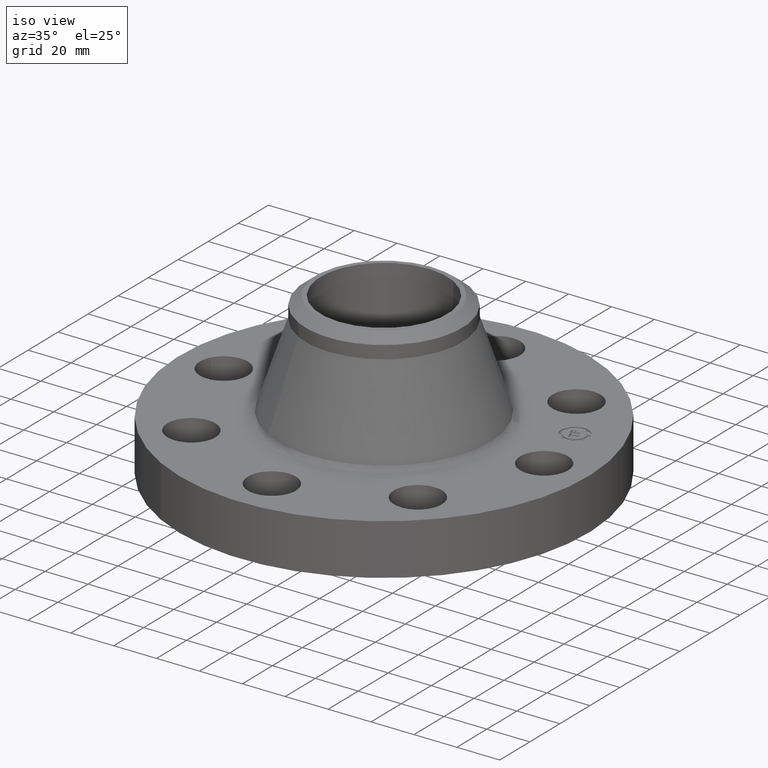
[diagram: clean part render]
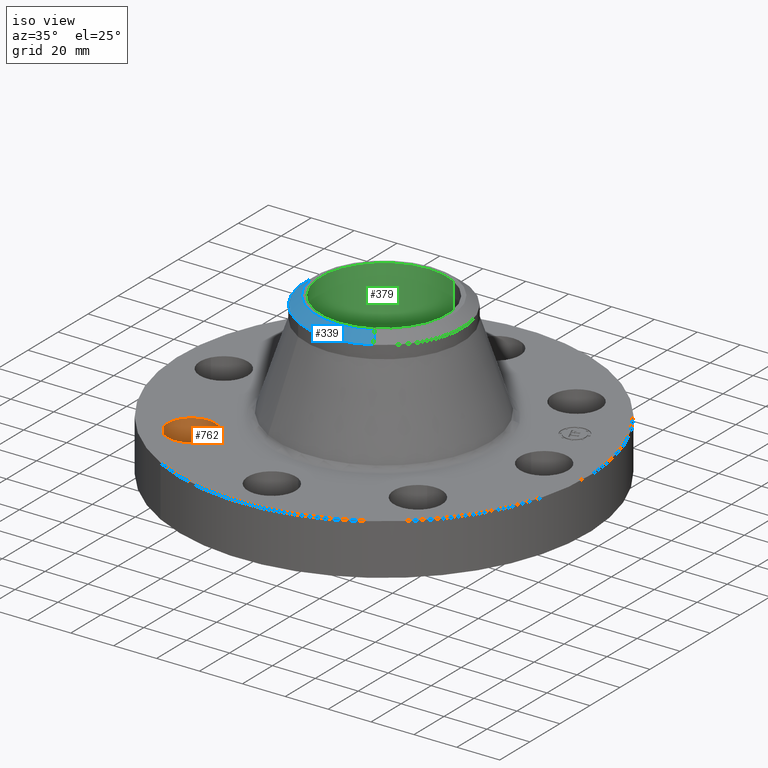
[diagram: same view with three faces highlighted in distinct colors, each labeled with its STEP entity id]
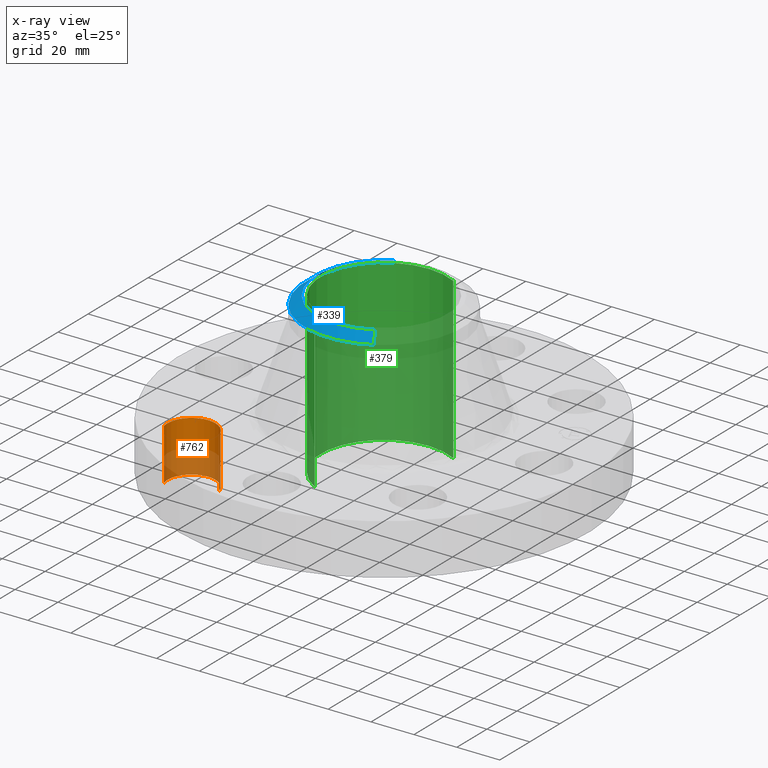
[diagram: x-ray of the same camera — body ghosted, the three highlighted faces saturated]
A machine part, iso view with three faces highlighted in distinct colors.
The next image is the same camera in x-ray (body ghosted, the three faces saturated) — at least one of them is partly hidden behind the body in this view.
Their STEP definitions:

[orange] entity #762 — the highlighted cylindrical surface (edge-blend (fillet) strip) has radius 11.176 mm, axis along (-0, 0, -1).
#511=AXIS2_PLACEMENT_3D('Circle Axis2P3D',#509,#510,$) ;
#723=AXIS2_PLACEMENT_3D('Cylinder Axis2P3D',#720,#721,#722) ;
#753=AXIS2_PLACEMENT_3D('Circle Axis2P3D',#751,#752,$) ;
#504=CARTESIAN_POINT('Vertex',(-1.6566920995,-1.95501654299,0.)) ;
#506=CARTESIAN_POINT('Vertex',(-2.50109577389,-2.2027713304,-1.39870617276E-016)) ;
#509=CARTESIAN_POINT('Axis2P3D Location',(-2.0788939367,-2.0788939367,0.)) ;
#720=CARTESIAN_POINT('Axis2P3D Location',(-2.0788939367,-2.0788939367,0.93606299213)) ;
#725=CARTESIAN_POINT('Line Origine',(-1.6566920995,-1.95501654299,0.470000000002)) ;
#729=CARTESIAN_POINT('Vertex',(-1.6566920995,-1.95501654299,0.940000000004)) ;
#732=CARTESIAN_POINT('Line Origine',(-2.50109577389,-2.2027713304,0.470000000002)) ;
#736=CARTESIAN_POINT('Vertex',(-2.50109577389,-2.2027713304,0.940000000004)) ;
#751=CARTESIAN_POINT('Axis2P3D Location',(-2.0788939367,-2.0788939367,0.940000000004)) ;
#510=DIRECTION('Axis2P3D Direction',(0.,0.,-0.0393700787402)) ;
#721=DIRECTION('Axis2P3D Direction',(-0.,0.,-0.0393700787402)) ;
#722=DIRECTION('Axis2P3D XDirection',(-0.0377775444876,-0.0110842335096,0.)) ;
#726=DIRECTION('Vector Direction',(0.,0.,-0.0393700787402)) ;
#733=DIRECTION('Vector Direction',(0.,0.,-0.0393700787402)) ;
#752=DIRECTION('Axis2P3D Direction',(-0.,0.,-0.0393700787402)) ;
#727=VECTOR('Line Direction',#726,0.0393700787402) ;
#734=VECTOR('Line Direction',#733,0.0393700787402) ;
#757=ORIENTED_EDGE('',*,*,#738,.F.) ;
#758=ORIENTED_EDGE('',*,*,#513,.T.) ;
#759=ORIENTED_EDGE('',*,*,#731,.T.) ;
#760=ORIENTED_EDGE('',*,*,#755,.F.) ;
#762=ADVANCED_FACE('PartBody',(#761),#724,.F.) ;
#512=CIRCLE('generated circle',#511,0.440000000002) ;
#754=CIRCLE('generated circle',#753,0.440000000002) ;
#724=CYLINDRICAL_SURFACE('generated cylinder',#723,0.440000000002) ;
#513=EDGE_CURVE('',#507,#505,#512,.T.) ;
#731=EDGE_CURVE('',#505,#730,#728,.F.) ;
#738=EDGE_CURVE('',#507,#737,#735,.F.) ;
#755=EDGE_CURVE('',#737,#730,#754,.T.) ;
#756=EDGE_LOOP('',(#757,#758,#759,#760)) ;
#761=FACE_OUTER_BOUND('',#756,.T.) ;
#728=LINE('Line',#725,#727) ;
#735=LINE('Line',#732,#734) ;
#505=VERTEX_POINT('',#504) ;
#507=VERTEX_POINT('',#506) ;
#730=VERTEX_POINT('',#729) ;
#737=VERTEX_POINT('',#736) ;

[blue] entity #339 — the highlighted conical surface has half-angle 52.5 deg.
#277=AXIS2_PLACEMENT_3D('Circle Axis2P3D',#275,#276,$) ;
#290=AXIS2_PLACEMENT_3D('Circle Axis2P3D',#288,#289,$) ;
#311=AXIS2_PLACEMENT_3D('Cone Axis2P3D',#308,#309,#310) ;
#322=AXIS2_PLACEMENT_3D('Circle Axis2P3D',#320,#321,$) ;
#258=CARTESIAN_POINT('Vertex',(-0.690372775593,-1.26371888913,2.78671888173)) ;
#272=CARTESIAN_POINT('Vertex',(0.690372775593,-1.26371888913,2.78671888173)) ;
#275=CARTESIAN_POINT('Axis2P3D Location',(0.,0.,2.78671888173)) ;
#288=CARTESIAN_POINT('Axis2P3D Location',(0.,0.,2.78671888173)) ;
#292=CARTESIAN_POINT('Vertex',(-0.690372775593,1.26371888913,2.78671888173)) ;
#308=CARTESIAN_POINT('Axis2P3D Location',(0.,0.,2.94000000001)) ;
#313=CARTESIAN_POINT('Line Origine',(0.642487790547,-1.17606601195,2.86335944087)) ;
#317=CARTESIAN_POINT('Vertex',(0.594602805501,-1.08841313476,2.94000000001)) ;
#320=CARTESIAN_POINT('Axis2P3D Location',(0.,0.,2.94000000001)) ;
#324=CARTESIAN_POINT('Vertex',(-0.594602805501,1.08841313476,2.94000000001)) ;
#327=CARTESIAN_POINT('Line Origine',(-0.642487790547,1.17606601195,2.86335944087)) ;
#276=DIRECTION('Axis2P3D Direction',(0.,0.,-0.0393700787402)) ;
#289=DIRECTION('Axis2P3D Direction',(0.,0.,-0.0393700787402)) ;
#309=DIRECTION('Axis2P3D Direction',(-0.,-0.,-0.0393700787402)) ;
#310=DIRECTION('Axis2P3D XDirection',(-0.0188750212049,0.0345504945626,0.)) ;
#314=DIRECTION('Vector Direction',(0.014974561121,-0.02741075027,-0.023966985394)) ;
#321=DIRECTION('Axis2P3D Direction',(0.,0.,-0.0393700787402)) ;
#328=DIRECTION('Vector Direction',(-0.014974561121,0.02741075027,-0.023966985394)) ;
#315=VECTOR('Line Direction',#314,0.0393700787402) ;
#329=VECTOR('Line Direction',#328,0.0393700787402) ;
#333=ORIENTED_EDGE('',*,*,#319,.F.) ;
#334=ORIENTED_EDGE('',*,*,#326,.F.) ;
#335=ORIENTED_EDGE('',*,*,#331,.T.) ;
#336=ORIENTED_EDGE('',*,*,#294,.T.) ;
#337=ORIENTED_EDGE('',*,*,#279,.F.) ;
#339=ADVANCED_FACE('PartBody',(#338),#312,.T.) ;
#278=CIRCLE('generated circle',#277,1.44000000001) ;
#291=CIRCLE('generated circle',#290,1.44000000001) ;
#323=CIRCLE('generated circle',#322,1.24024015748) ;
#312=CONICAL_SURFACE('Cone',#311,1.24024015748,0.916297857297) ;
#279=EDGE_CURVE('',#273,#259,#278,.T.) ;
#294=EDGE_CURVE('',#293,#259,#291,.F.) ;
#319=EDGE_CURVE('',#318,#273,#316,.T.) ;
#326=EDGE_CURVE('',#325,#318,#323,.F.) ;
#331=EDGE_CURVE('',#325,#293,#330,.T.) ;
#332=EDGE_LOOP('',(#333,#334,#335,#336,#337)) ;
#338=FACE_OUTER_BOUND('',#332,.T.) ;
#316=LINE('Line',#313,#315) ;
#330=LINE('Line',#327,#329) ;
#259=VERTEX_POINT('',#258) ;
#273=VERTEX_POINT('',#272) ;
#293=VERTEX_POINT('',#292) ;
#318=VERTEX_POINT('',#317) ;
#325=VERTEX_POINT('',#324) ;

[green] entity #379 — the highlighted cylindrical surface (partial cylindrical patch) has radius 29.5021 mm, axis along (0, 0, -1).
#343=AXIS2_PLACEMENT_3D('Cylinder Axis2P3D',#340,#341,#342) ;
#347=AXIS2_PLACEMENT_3D('Circle Axis2P3D',#345,#346,$) ;
#363=AXIS2_PLACEMENT_3D('Circle Axis2P3D',#361,#362,$) ;
#340=CARTESIAN_POINT('Axis2P3D Location',(0.,0.,1.47000000001)) ;
#345=CARTESIAN_POINT('Axis2P3D Location',(0.,0.,2.94000000001)) ;
#349=CARTESIAN_POINT('Vertex',(-0.556852763091,-1.01931214564,2.94000000001)) ;
#351=CARTESIAN_POINT('Vertex',(0.556852763091,1.01931214564,2.94000000001)) ;
#354=CARTESIAN_POINT('Line Origine',(-0.556852763091,-1.01931214564,1.47000000001)) ;
#358=CARTESIAN_POINT('Vertex',(-0.556852763091,-1.01931214564,-2.23792987641E-015)) ;
#361=CARTESIAN_POINT('Axis2P3D Location',(0.,0.,-2.79741234551E-015)) ;
#365=CARTESIAN_POINT('Vertex',(0.556852763091,1.01931214564,-2.23792987641E-015)) ;
#368=CARTESIAN_POINT('Line Origine',(0.556852763091,1.01931214564,1.47000000001)) ;
#341=DIRECTION('Axis2P3D Direction',(0.,0.,-0.0393700787402)) ;
#342=DIRECTION('Axis2P3D XDirection',(0.0188750212049,0.0345504945626,0.)) ;
#346=DIRECTION('Axis2P3D Direction',(0.,0.,-0.0393700787402)) ;
#355=DIRECTION('Vector Direction',(0.,0.,-0.0393700787402)) ;
#362=DIRECTION('Axis2P3D Direction',(0.,0.,-0.0393700787402)) ;
#369=DIRECTION('Vector Direction',(0.,0.,-0.0393700787402)) ;
#356=VECTOR('Line Direction',#355,0.0393700787402) ;
#370=VECTOR('Line Direction',#369,0.0393700787402) ;
#374=ORIENTED_EDGE('',*,*,#353,.F.) ;
#375=ORIENTED_EDGE('',*,*,#360,.T.) ;
#376=ORIENTED_EDGE('',*,*,#367,.T.) ;
#377=ORIENTED_EDGE('',*,*,#372,.F.) ;
#379=ADVANCED_FACE('PartBody',(#378),#344,.F.) ;
#348=CIRCLE('generated circle',#347,1.1615) ;
#364=CIRCLE('generated circle',#363,1.1615) ;
#344=CYLINDRICAL_SURFACE('generated cylinder',#343,1.1615) ;
#353=EDGE_CURVE('',#350,#352,#348,.T.) ;
#360=EDGE_CURVE('',#350,#359,#357,.T.) ;
#367=EDGE_CURVE('',#359,#366,#364,.T.) ;
#372=EDGE_CURVE('',#352,#366,#371,.T.) ;
#373=EDGE_LOOP('',(#374,#375,#376,#377)) ;
#378=FACE_OUTER_BOUND('',#373,.T.) ;
#357=LINE('Line',#354,#356) ;
#371=LINE('Line',#368,#370) ;
#350=VERTEX_POINT('',#349) ;
#352=VERTEX_POINT('',#351) ;
#359=VERTEX_POINT('',#358) ;
#366=VERTEX_POINT('',#365) ;